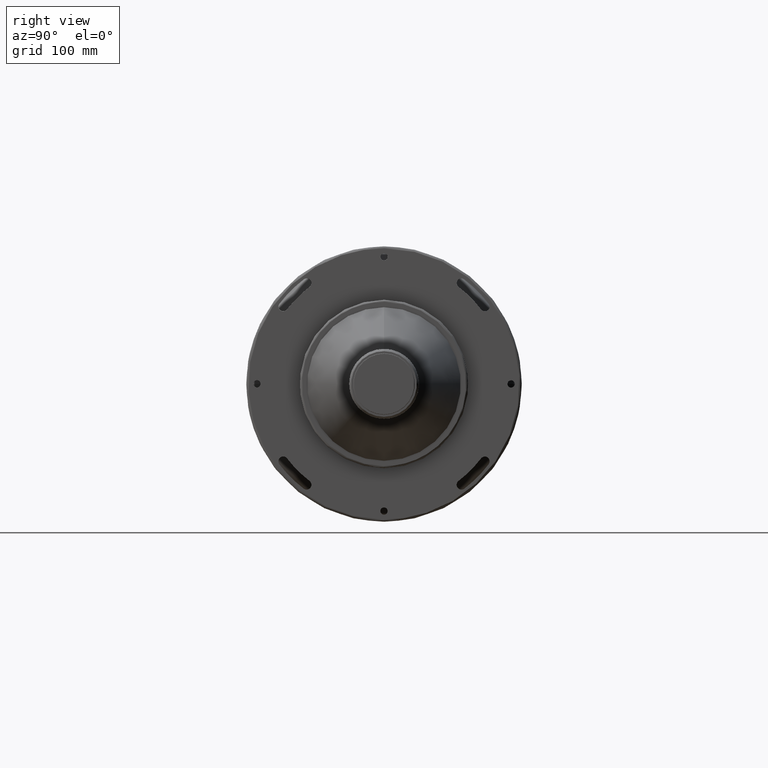
[diagram: clean part render]
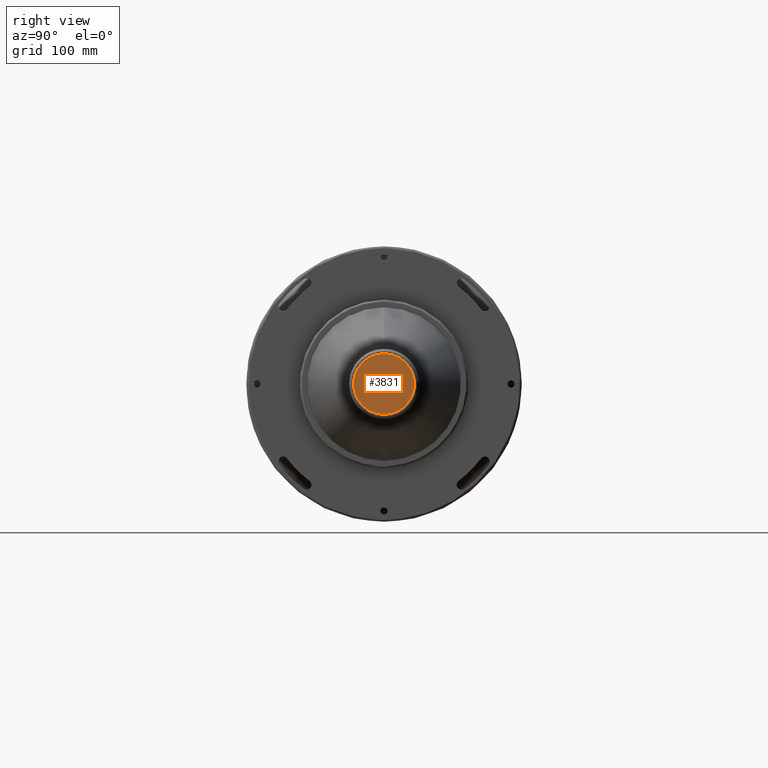
[diagram: same view with one face highlighted and labeled with its STEP entity id]
A machine part, right view. The second image highlights one B-rep face of the part: STEP entity #3831.
In plain terms, the highlighted planar face has unit normal (-1, 0, 0).
Its self-contained STEP definition (entity closure, byte-faithful):
#64 = AXIS2_PLACEMENT_3D ( 'NONE', #2030, #2985, #1412 ) ;
#303 = AXIS2_PLACEMENT_3D ( 'NONE', #1872, #2199, #2798 ) ;
#361 = EDGE_LOOP ( 'NONE', ( #3627, #2009 ) ) ;
#384 = CARTESIAN_POINT ( 'NONE',  ( 292.1999999999999900, 0.0000000000000000000, 28.69999999999999900 ) ) ;
#388 = VERTEX_POINT ( 'NONE', #384 ) ;
#479 = PLANE ( 'NONE',  #64 ) ;
#578 = EDGE_CURVE ( 'NONE', #1137, #388, #1988, .T. ) ;
#861 = EDGE_CURVE ( 'NONE', #388, #1137, #878, .T. ) ;
#878 = CIRCLE ( 'NONE', #303, 28.69999999999999900 ) ;
#1137 = VERTEX_POINT ( 'NONE', #2460 ) ;
#1412 = DIRECTION ( 'NONE',  ( 0.0000000000000000000, 0.0000000000000000000, 1.000000000000000000 ) ) ;
#1786 = FACE_OUTER_BOUND ( 'NONE', #361, .T. ) ;
#1872 = CARTESIAN_POINT ( 'NONE',  ( 292.1999999999999900, 0.0000000000000000000, 0.0000000000000000000 ) ) ;
#1988 = CIRCLE ( 'NONE', #2468, 28.69999999999999900 ) ;
#2009 = ORIENTED_EDGE ( 'NONE', *, *, #578, .T. ) ;
#2013 = DIRECTION ( 'NONE',  ( 0.0000000000000000000, 0.0000000000000000000, 1.000000000000000000 ) ) ;
#2025 = CARTESIAN_POINT ( 'NONE',  ( 292.1999999999999900, 0.0000000000000000000, 0.0000000000000000000 ) ) ;
#2030 = CARTESIAN_POINT ( 'NONE',  ( 292.1999999999999900, -29.04440000000000300, -29.04440000000000300 ) ) ;
#2199 = DIRECTION ( 'NONE',  ( 1.000000000000000000, -0.0000000000000000000, -0.0000000000000000000 ) ) ;
#2460 = CARTESIAN_POINT ( 'NONE',  ( 292.1999999999999900, 3.533106015540114000E-015, -28.69999999999999900 ) ) ;
#2468 = AXIS2_PLACEMENT_3D ( 'NONE', #2025, #2668, #2013 ) ;
#2668 = DIRECTION ( 'NONE',  ( 1.000000000000000000, -0.0000000000000000000, -0.0000000000000000000 ) ) ;
#2798 = DIRECTION ( 'NONE',  ( 0.0000000000000000000, 0.0000000000000000000, 1.000000000000000000 ) ) ;
#2985 = DIRECTION ( 'NONE',  ( -1.000000000000000000, 0.0000000000000000000, 0.0000000000000000000 ) ) ;
#3627 = ORIENTED_EDGE ( 'NONE', *, *, #861, .T. ) ;
#3831 = ADVANCED_FACE ( 'NONE', ( #1786 ), #479, .F. ) ;